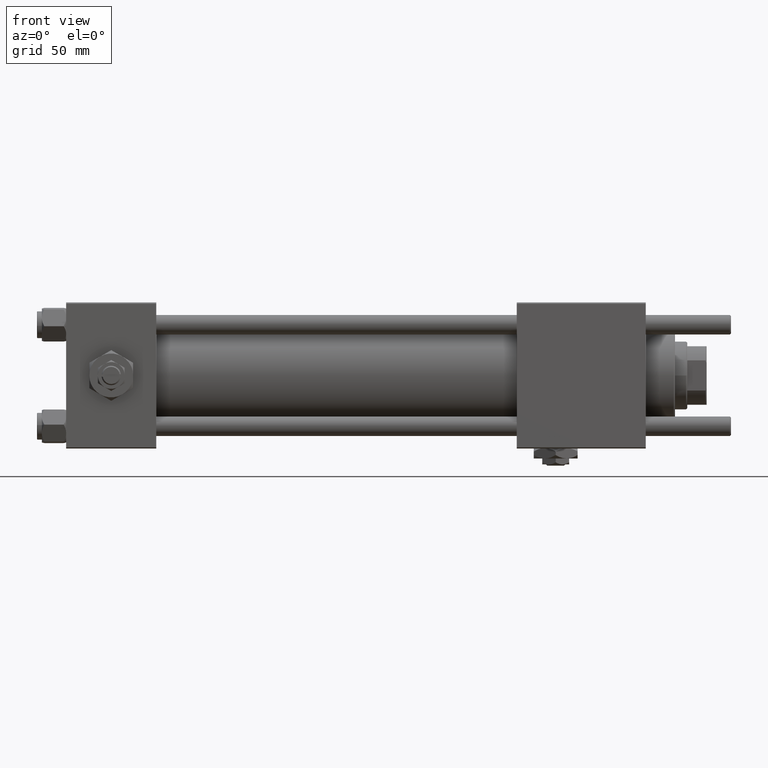
[diagram: clean part render]
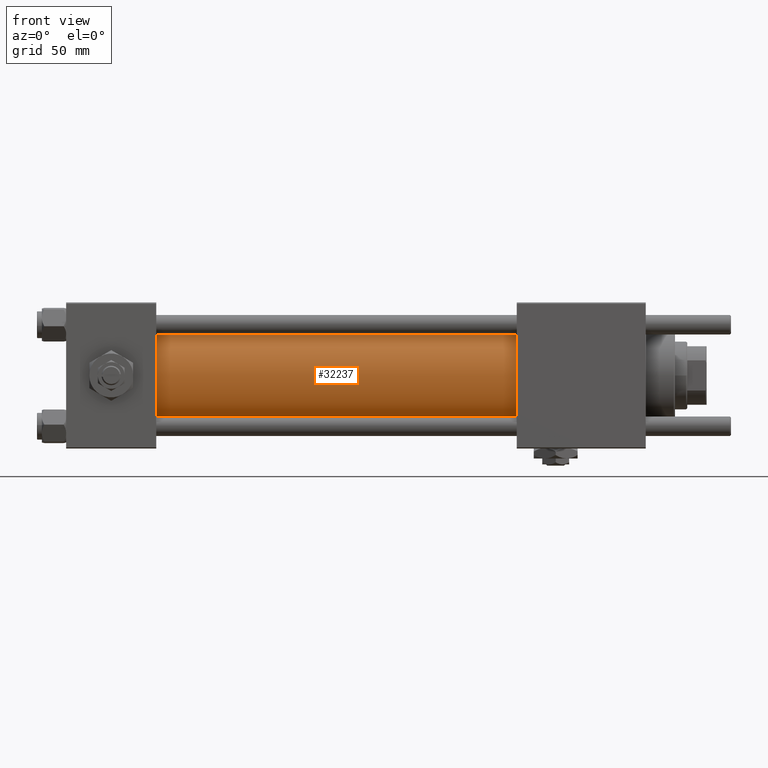
[diagram: same view with one face highlighted and labeled with its STEP entity id]
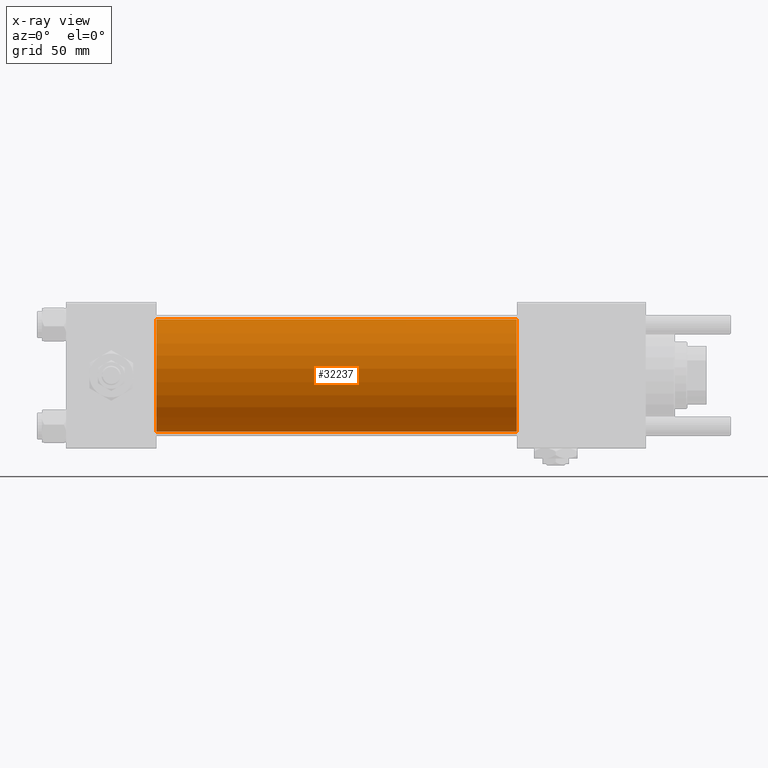
[diagram: x-ray of the same camera — body ghosted, the highlighted face saturated]
A machine part, front view. The second image highlights one B-rep face of the part: STEP entity #32237.
The next image is the same camera in x-ray: the body ghosted, the highlighted face saturated — about 0% of this face is hidden behind the body in this view.
In plain terms, the highlighted cylindrical surface (partial cylindrical patch) has radius 23 mm, axis along (-1, -0, -0).
Its self-contained STEP definition (entity closure, byte-faithful):
#667 = AXIS2_PLACEMENT_3D ( 'NONE', #41755, #1146, #51005 ) ;
#1146 = DIRECTION ( 'NONE',  ( 1.000000000000000000, -0.000000000000000000, 0.000000000000000000 ) ) ;
#4509 = DIRECTION ( 'NONE',  ( 1.000000000000000000, 0.000000000000000000, 0.000000000000000000 ) ) ;
#5093 = VERTEX_POINT ( 'NONE', #28675 ) ;
#7300 = CIRCLE ( 'NONE', #667, 23.00000000000000000 ) ;
#7681 = DIRECTION ( 'NONE',  ( -1.000000000000000000, -0.000000000000000000, -0.000000000000000000 ) ) ;
#12453 = CARTESIAN_POINT ( 'NONE',  ( 185.0000000000000000, -2.602085213965210642E-15, 23.00000000000000000 ) ) ;
#13460 = CARTESIAN_POINT ( 'NONE',  ( 185.0000000000000000, -2.602085213965210642E-15, 0.000000000000000000 ) ) ;
#16122 = AXIS2_PLACEMENT_3D ( 'NONE', #44119, #53370, #48889 ) ;
#16775 = EDGE_CURVE ( 'NONE', #47548, #48962, #40600, .T. ) ;
#19579 = EDGE_CURVE ( 'NONE', #43651, #5093, #7300, .T. ) ;
#22127 = DIRECTION ( 'NONE',  ( 0.000000000000000000, 0.000000000000000000, -1.000000000000000000 ) ) ;
#26158 = LINE ( 'NONE', #40501, #43954 ) ;
#26190 = CYLINDRICAL_SURFACE ( 'NONE', #16122, 23.00000000000000000 ) ;
#28047 = CARTESIAN_POINT ( 'NONE',  ( 185.0000000000000000, -2.602085213965210642E-15, 23.00000000000000000 ) ) ;
#28675 = CARTESIAN_POINT ( 'NONE',  ( 37.00000000000000711, 2.146024240737016609E-16, -23.00000000000000000 ) ) ;
#31845 = FACE_OUTER_BOUND ( 'NONE', #49559, .T. ) ;
#32237 = ADVANCED_FACE ( 'NONE', ( #31845 ), #26190, .T. ) ;
#34075 = ORIENTED_EDGE ( 'NONE', *, *, #36991, .F. ) ;
#36779 = AXIS2_PLACEMENT_3D ( 'NONE', #13460, #4509, #22127 ) ;
#36991 = EDGE_CURVE ( 'NONE', #48962, #5093, #26158, .T. ) ;
#39856 = ORIENTED_EDGE ( 'NONE', *, *, #39871, .T. ) ;
#39871 = EDGE_CURVE ( 'NONE', #47548, #43651, #53358, .T. ) ;
#40501 = CARTESIAN_POINT ( 'NONE',  ( 185.0000000000000000, 2.146024240737016609E-16, -23.00000000000000000 ) ) ;
#40600 = CIRCLE ( 'NONE', #36779, 23.00000000000000000 ) ;
#41755 = CARTESIAN_POINT ( 'NONE',  ( 37.00000000000000711, -2.602085213965210642E-15, 0.000000000000000000 ) ) ;
#43651 = VERTEX_POINT ( 'NONE', #46574 ) ;
#43954 = VECTOR ( 'NONE', #58102, 1000.000000000000000 ) ;
#44119 = CARTESIAN_POINT ( 'NONE',  ( 185.0000000000000000, -2.602085213965210642E-15, 0.000000000000000000 ) ) ;
#46574 = CARTESIAN_POINT ( 'NONE',  ( 37.00000000000000711, -2.602085213965210642E-15, 23.00000000000000000 ) ) ;
#47548 = VERTEX_POINT ( 'NONE', #28047 ) ;
#48522 = ORIENTED_EDGE ( 'NONE', *, *, #16775, .F. ) ;
#48889 = DIRECTION ( 'NONE',  ( 0.000000000000000000, 0.000000000000000000, 1.000000000000000000 ) ) ;
#48962 = VERTEX_POINT ( 'NONE', #52155 ) ;
#49368 = ORIENTED_EDGE ( 'NONE', *, *, #19579, .T. ) ;
#49559 = EDGE_LOOP ( 'NONE', ( #34075, #48522, #39856, #49368 ) ) ;
#51005 = DIRECTION ( 'NONE',  ( 0.000000000000000000, 0.000000000000000000, 1.000000000000000000 ) ) ;
#52155 = CARTESIAN_POINT ( 'NONE',  ( 185.0000000000000000, 2.146024240737016609E-16, -23.00000000000000000 ) ) ;
#53358 = LINE ( 'NONE', #12453, #56901 ) ;
#53370 = DIRECTION ( 'NONE',  ( -1.000000000000000000, -0.000000000000000000, -0.000000000000000000 ) ) ;
#56901 = VECTOR ( 'NONE', #7681, 1000.000000000000000 ) ;
#58102 = DIRECTION ( 'NONE',  ( -1.000000000000000000, -0.000000000000000000, -0.000000000000000000 ) ) ;